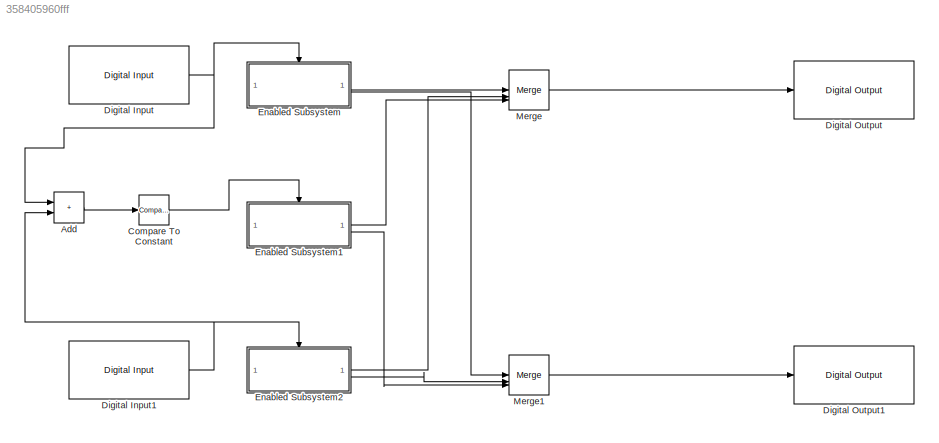
MODEL slx_358405960fff
KIND model
CONFIG AbsTol = auto
CONFIG EnableMultiTasking = on
CONFIG FixedStep = 1e-3
CONFIG MaxStep = auto
CONFIG MinStep = auto
CONFIG RelTol = 1e-3
CONFIG SampleTimeConstraint = Unconstrained
CONFIG SolverName = FixedStepDiscrete
CONFIG StartTime = 0.0
CONFIG StopTime = inf
BLOCK [Sum] Add
  IconShape = rectangular
BLOCK [Reference] Compare To Constant  REF=simulink/Logic and Bit
Operations/Compare
To Constant
  SourceBlock = simulink/Logic and Bit\nOperations/Compare\nTo Constant
  SourceType = Compare To Constant
BLOCK [Reference] Digital Input  REF=arduinolib/Digital Input
  SourceBlock = arduinolib/Digital Input
  SourceType = Arduino Digital Input
BLOCK [Reference] Digital Input1  REF=arduinolib/Digital Input
  SourceBlock = arduinolib/Digital Input
  SourceType = Arduino Digital Input
BLOCK [Reference] Digital Output  REF=arduinolib/Digital Output
  SourceBlock = arduinolib/Digital Output
  SourceType = Arduino Digital Output
BLOCK [Reference] Digital Output1  REF=arduinolib/Digital Output
  SourceBlock = arduinolib/Digital Output
  SourceType = Arduino Digital Output
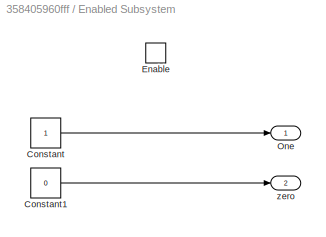
BLOCK [SubSystem] Enabled Subsystem
  TreatAsAtomicUnit = on
BLOCK [Constant] Enabled Subsystem/Constant
BLOCK [Constant] Enabled Subsystem/Constant1
  Value = 0
BLOCK [EnablePort] Enabled Subsystem/Enable
  StatesWhenEnabling = reset
BLOCK [Outport] Enabled Subsystem/One
BLOCK [Outport] Enabled Subsystem/zero
  Port = 2
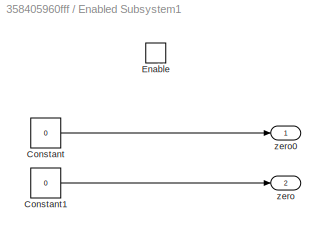
BLOCK [SubSystem] Enabled Subsystem1
  TreatAsAtomicUnit = on
BLOCK [Constant] Enabled Subsystem1/Constant
  Value = 0
BLOCK [Constant] Enabled Subsystem1/Constant1
  Value = 0
BLOCK [EnablePort] Enabled Subsystem1/Enable
  StatesWhenEnabling = reset
BLOCK [Outport] Enabled Subsystem1/zero
  Port = 2
BLOCK [Outport] Enabled Subsystem1/zero0
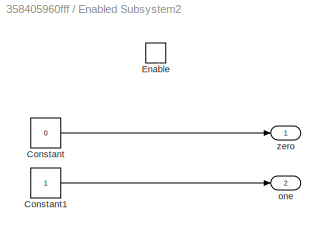
BLOCK [SubSystem] Enabled Subsystem2
  TreatAsAtomicUnit = on
BLOCK [Constant] Enabled Subsystem2/Constant
  Value = 0
BLOCK [Constant] Enabled Subsystem2/Constant1
BLOCK [EnablePort] Enabled Subsystem2/Enable
  StatesWhenEnabling = reset
BLOCK [Outport] Enabled Subsystem2/one
  Port = 2
BLOCK [Outport] Enabled Subsystem2/zero
BLOCK [Merge] Merge
  Inputs = 3
BLOCK [Merge] Merge1
  Inputs = 3
LINE Add:1 -> Compare To Constant:1
LINE Compare To Constant:1 -> Enabled Subsystem1:enable
NET Digital Input1:1 -> Add:2, Enabled Subsystem2:enable
NET Digital Input:1 -> Add:1, Enabled Subsystem:enable
LINE Enabled Subsystem/Constant1:1 -> Enabled Subsystem/zero:1
LINE Enabled Subsystem/Constant:1 -> Enabled Subsystem/One:1
LINE Enabled Subsystem1/Constant1:1 -> Enabled Subsystem1/zero:1
LINE Enabled Subsystem1/Constant:1 -> Enabled Subsystem1/zero0:1
LINE Enabled Subsystem1:1 -> Merge:3
LINE Enabled Subsystem1:2 -> Merge1:3
LINE Enabled Subsystem2/Constant1:1 -> Enabled Subsystem2/one:1
LINE Enabled Subsystem2/Constant:1 -> Enabled Subsystem2/zero:1
LINE Enabled Subsystem2:1 -> Merge:2
LINE Enabled Subsystem2:2 -> Merge1:2
LINE Enabled Subsystem:1 -> Merge:1
LINE Enabled Subsystem:2 -> Merge1:1
LINE Merge1:1 -> Digital Output1:1
LINE Merge:1 -> Digital Output:1
note: NET lines group one-source signal fan-out (src -> all destinations, sorted); 1:1 wires keep LINE
